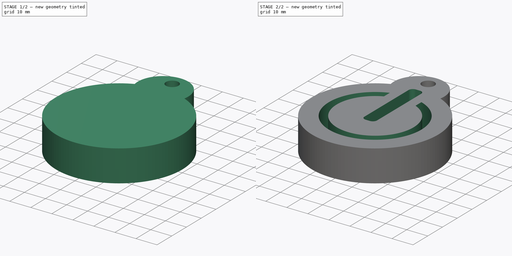
[diagram: build sequence overview — one tinted view per stage of 2, left to right]
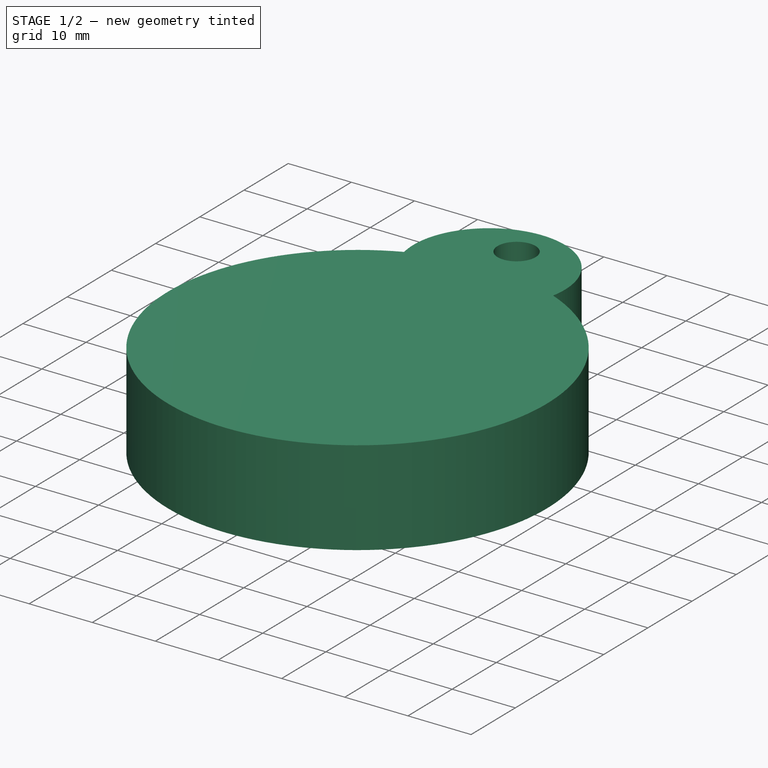
[diagram: stage 1 of 2 — iso view after this stage's code; geometry added in this stage tinted green]
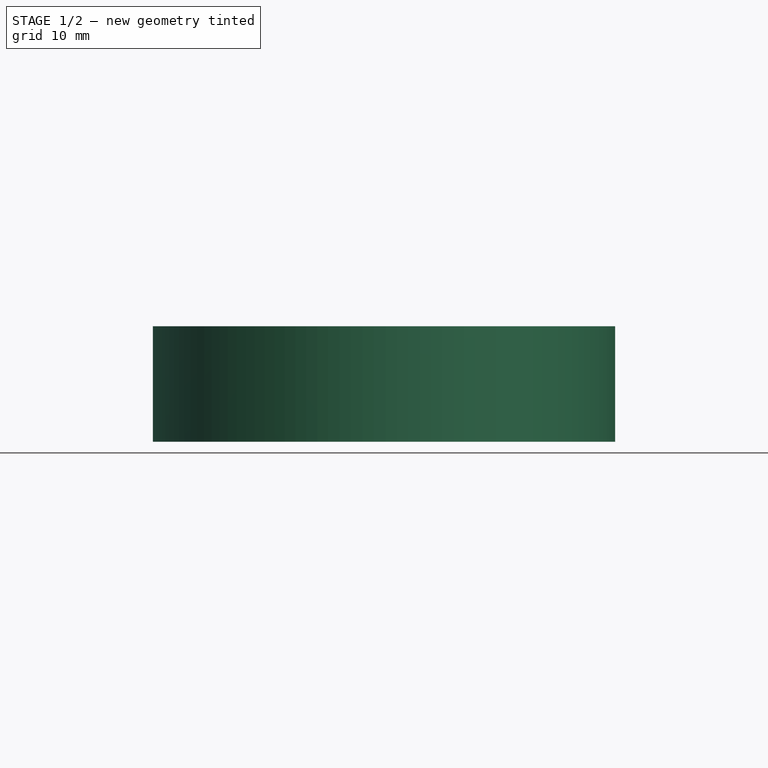
[diagram: stage 1 of 2 — front view after this stage's code; geometry added in this stage tinted green]
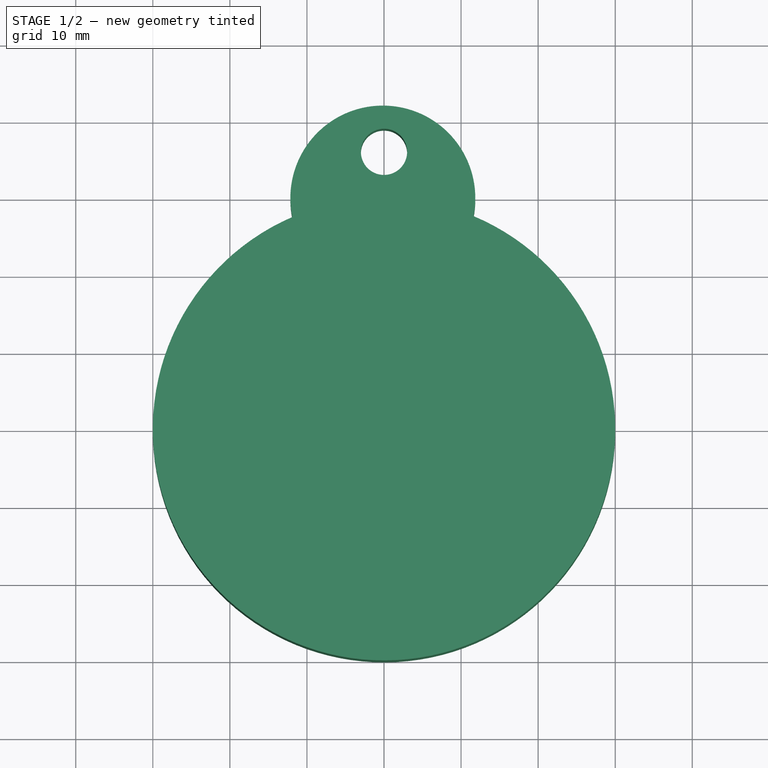
[diagram: stage 1 of 2 — top view after this stage's code; geometry added in this stage tinted green]
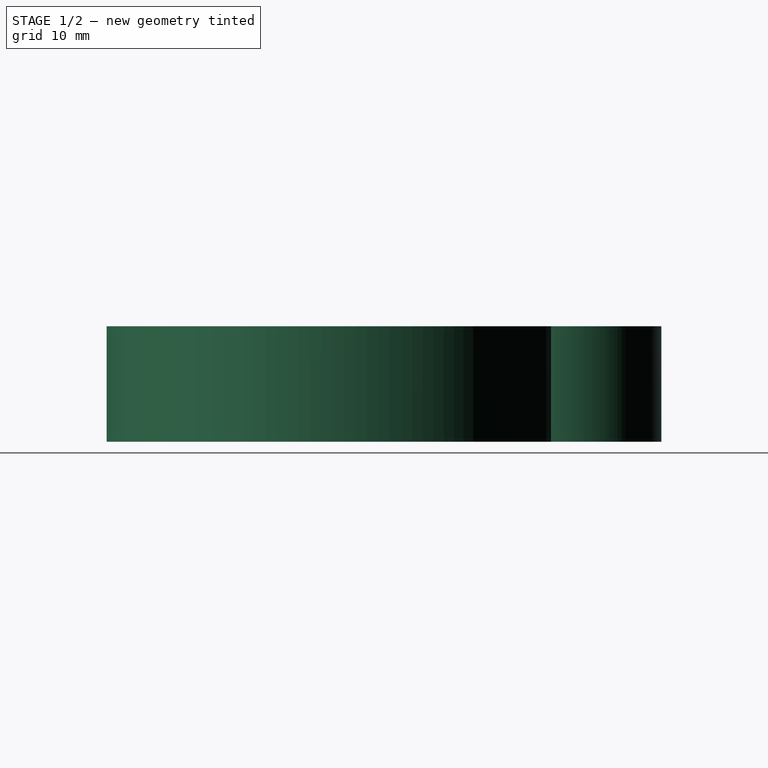
[diagram: stage 1 of 2 — right view after this stage's code; geometry added in this stage tinted green]
FCSTD DOCUMENT  (FreeCAD 0.19R24276 (Git))
Label: llavero_encendido
License: All rights reserved
LicenseURL: http://en.wikipedia.org/wiki/All_rights_reserved
objects: Sketcher::SketchObject×2, PartDesign::Pad×1, PartDesign::Pocket×1, PartDesign::Body×1
note: 7 computed .brp shape members not serialized (recipe doc carries the construction recipe); baked Part::Feature solids carry a one-line shape summary decoded from their .brp

FEATURE [Sketcher::SketchObject] Sketch
  FullyConstrained = true
  MapMode = 5
  Support = -> [XY_Plane]
  sketch-geometry (3):
    g0: ArcOfCircle CenterX=0 CenterY=0 CenterZ=0 NormalX=0 NormalY=0 NormalZ=1 AngleXU=0 Radius=30 StartAngle=1.97865 EndAngle=7.4564
    g1: ArcOfCircle CenterX=-0.154021 CenterY=29.9996 CenterZ=0 NormalX=0 NormalY=0 NormalZ=1 AngleXU=0 Radius=12 StartAngle=6.08696 EndAngle=9.63127
    g2: Circle CenterX=0 CenterY=35.9996 CenterZ=0 NormalX=0 NormalY=0 NormalZ=1 AngleXU=0 Radius=3
  constraints (10):
    c: Coincident(g0,g-1)
    c: Radius(g0) = 30
    c: PointOnObject(g1,g0)
    c: PointOnObject(g2,g-2)
    c: Radius(g1) = 12
    c: Radius(g2) = 3
    c: DistanceY(g1,g2) = 6
    c: DistanceY(g0,g1) = 27.66
    c: Coincident(g0,g1)
    c: Coincident(g0,g1)
FEATURE [PartDesign::Pad] Pad
  Direction = (1,1,1)
  Length = 15
  Length2 = 100
  Profile = -> Sketch
  Refine = true
  Type = 0
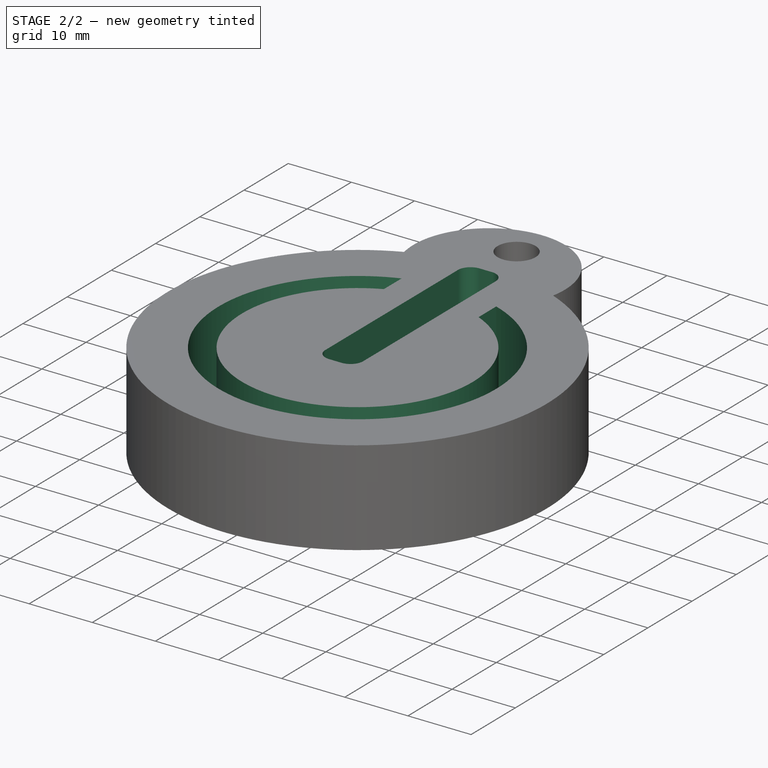
[diagram: stage 2 of 2 — iso view after this stage's code; geometry added in this stage tinted green]
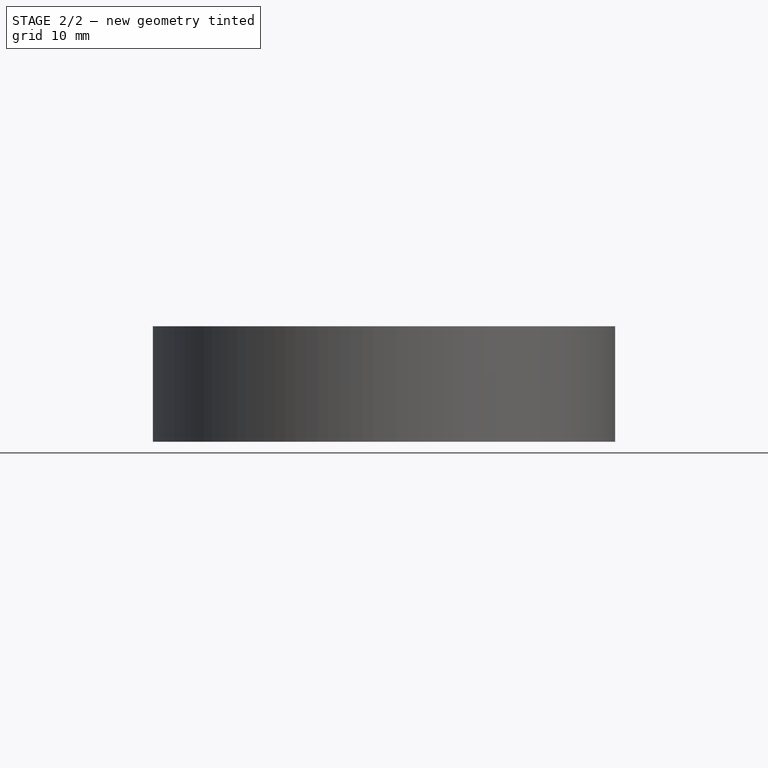
[diagram: stage 2 of 2 — front view after this stage's code; geometry added in this stage tinted green]
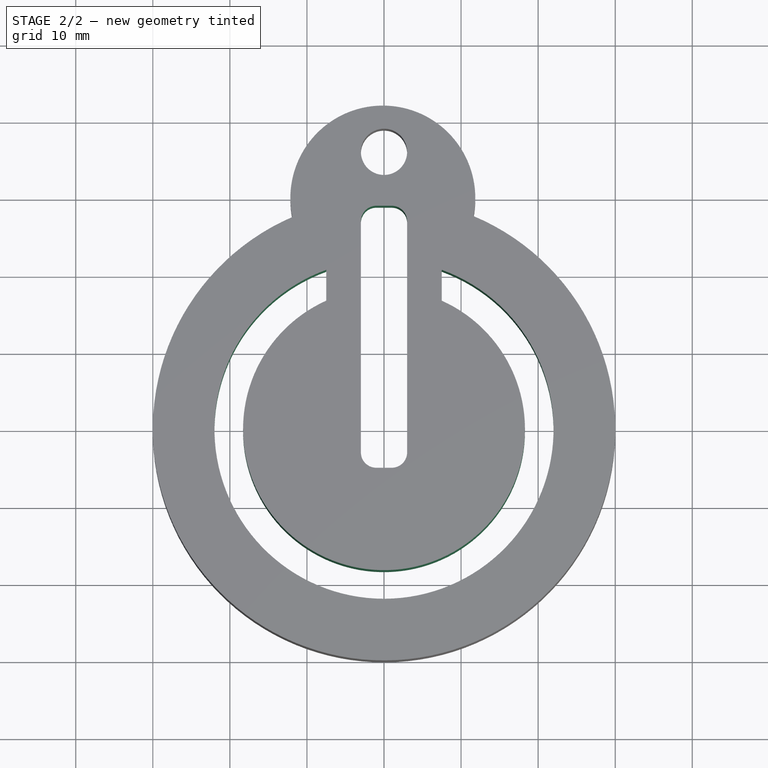
[diagram: stage 2 of 2 — top view after this stage's code; geometry added in this stage tinted green]
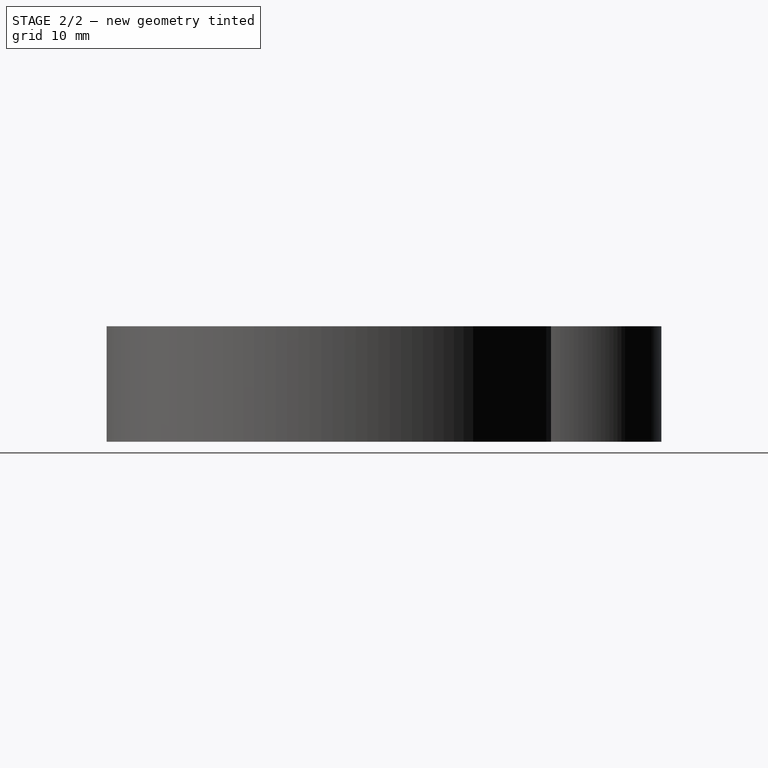
[diagram: stage 2 of 2 — right view after this stage's code; geometry added in this stage tinted green]
FEATURE [Sketcher::SketchObject] Sketch001
  FullyConstrained = true
  MapMode = 5
  Placement = pos=(0,0,15) rot=(0,0,1;0rad)
  Support = -> [Pad]
  sketch-geometry (12):
    g0: ArcOfCircle CenterX=0 CenterY=0 CenterZ=0 NormalX=0 NormalY=0 NormalZ=1 AngleXU=0 Radius=22 StartAngle=1.91868 EndAngle=7.5061
    g1: ArcOfCircle CenterX=0 CenterY=0 CenterZ=0 NormalX=0 NormalY=0 NormalZ=1 AngleXU=0 Radius=18.2905 StartAngle=1.9933 EndAngle=7.43147
    g2: LineSegment StartX=-7.5 StartY=20.6821 StartZ=0 EndX=-7.5 EndY=16.6821 EndZ=0
    g3: LineSegment StartX=7.5 StartY=20.6821 StartZ=0 EndX=7.5 EndY=16.6821 EndZ=0
    g4: LineSegment StartX=-1 StartY=29 StartZ=0 EndX=1 EndY=29 EndZ=0
    g5: LineSegment StartX=3 StartY=27 StartZ=0 EndX=3 EndY=-3 EndZ=0
    g6: LineSegment StartX=1 StartY=-5 StartZ=0 EndX=-1 EndY=-5 EndZ=0
    g7: LineSegment StartX=-3 StartY=-3 StartZ=0 EndX=-3 EndY=27 EndZ=0
    g8: ArcOfCircle CenterX=-1 CenterY=27 CenterZ=0 NormalX=0 NormalY=0 NormalZ=1 AngleXU=0 Radius=2 StartAngle=1.5708 EndAngle=3.14159
    g9: ArcOfCircle CenterX=1 CenterY=27 CenterZ=0 NormalX=0 NormalY=0 NormalZ=1 AngleXU=0 Radius=2 StartAngle=0 EndAngle=1.5708
    g10: ArcOfCircle CenterX=1 CenterY=-3 CenterZ=0 NormalX=0 NormalY=0 NormalZ=1 AngleXU=0 Radius=2 StartAngle=4.71239 EndAngle=6.28319
    g11: ArcOfCircle CenterX=-1 CenterY=-3 CenterZ=0 NormalX=0 NormalY=0 NormalZ=1 AngleXU=0 Radius=2 StartAngle=3.14159 EndAngle=4.71239
  constraints (32):
    c: Coincident(g0,g-1)
    c: Coincident(g1,g0)
    c: Coincident(g2,g0)
    c: Coincident(g2,g1)
    c: Coincident(g3,g0)
    c: Coincident(g3,g1)
    c: Vertical(g2)
    c: Vertical(g3)
    c: Equal(g2,g3)
    c: DistanceY(g3,g3) = 4
    c: Radius(g0) = 22
    c: DistanceX(g1,g1) = 15
    c: Horizontal(g4)
    c: Vertical(g5)
    c: Horizontal(g6)
    c: Vertical(g7)
    c: Tangent(g4,g8) = 1.5708
    c: Tangent(g7,g8) = 1.5708
    c: Tangent(g5,g9) = 1.5708
    c: Tangent(g4,g9) = 1.5708
    c: Tangent(g5,g10) = 1.5708
    c: Tangent(g6,g10) = 1.5708
    c: Tangent(g6,g11) = 1.5708
    c: Tangent(g7,g11) = 1.5708
    c: Equal(g9,g8)
    c: Equal(g8,g10)
    c: Equal(g10,g11)
    c: Radius(g9) = 2
    c: DistanceX(g7,g5) = 6
    c: DistanceX(g5,g0) = 4.5
    c: DistanceY(g5,g5) = 30
    c: DistanceY(g6,g0) = 5
FEATURE [PartDesign::Pocket] Pocket
  BaseFeature = -> Pad
  Length = 5
  Length2 = 100
  Profile = -> Sketch001
  Refine = true
  Type = 1
FEATURE [PartDesign::Body] Body
  Group = -> [Sketch,Pad,Sketch001,Pocket]
  Origin = -> Origin
  Tip = -> Pocket
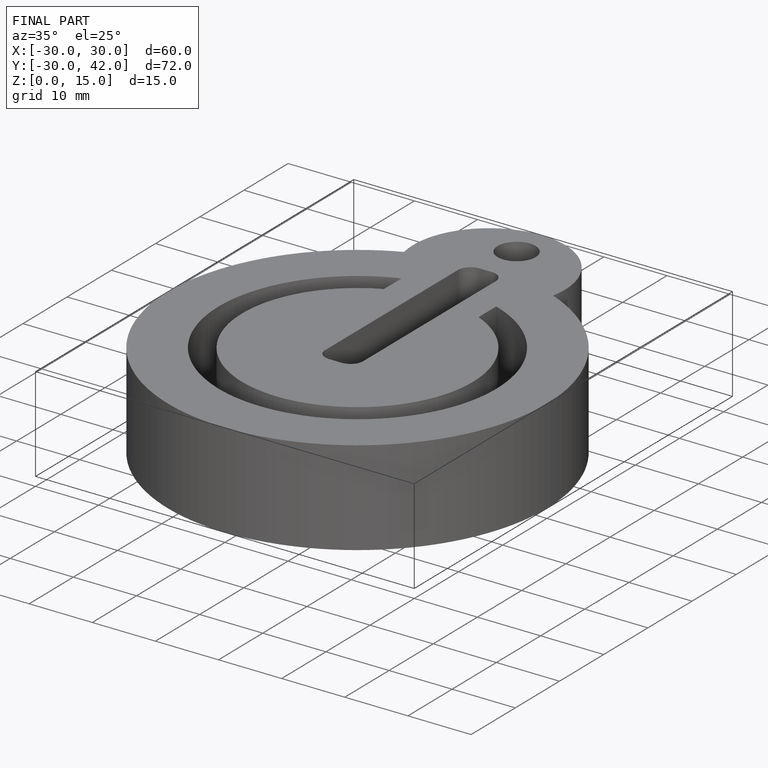
[diagram: finished part — iso view with bounding-box wireframe]
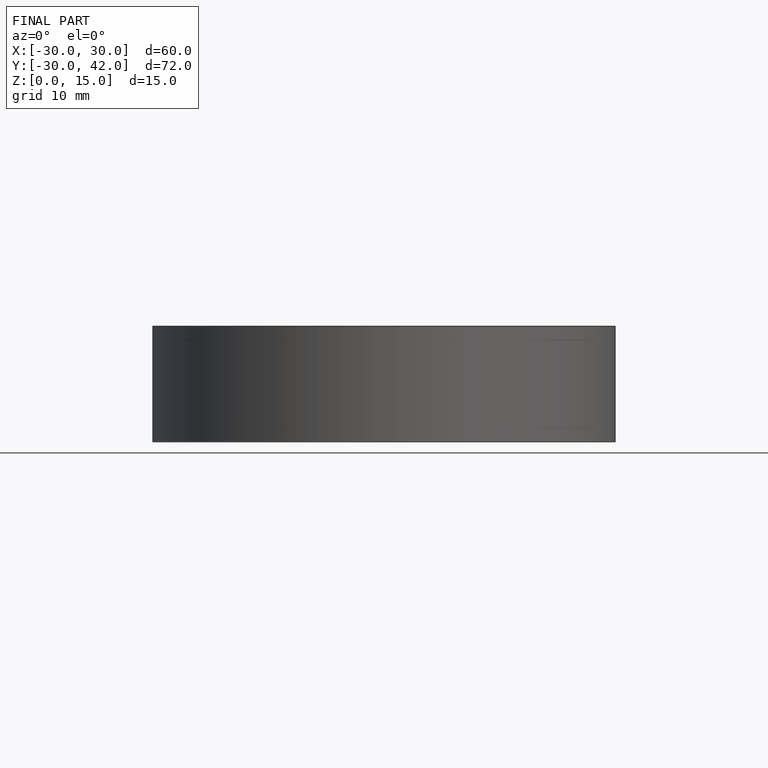
[diagram: finished part — front view with bounding-box wireframe]
